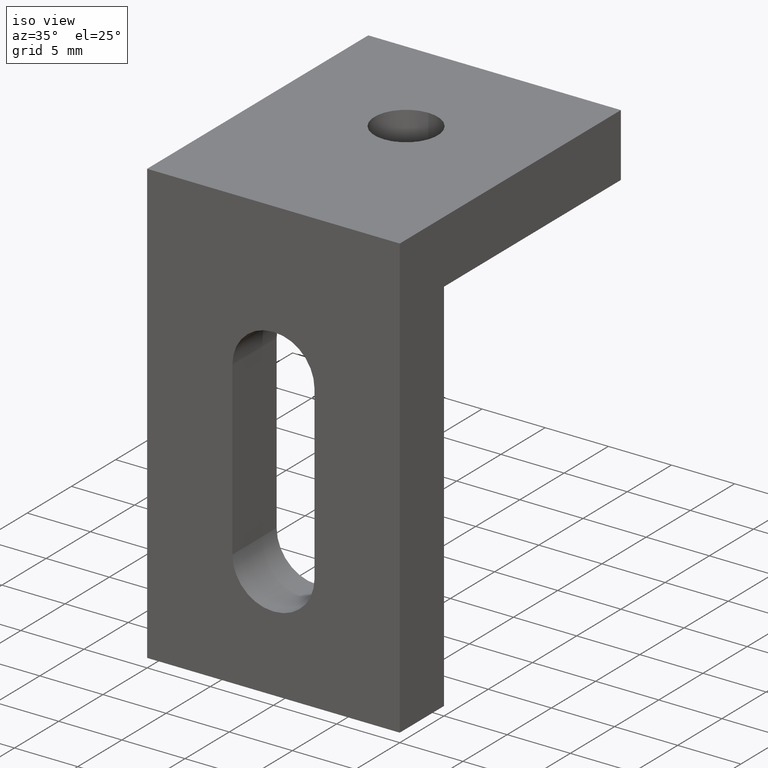
[diagram: clean part render]
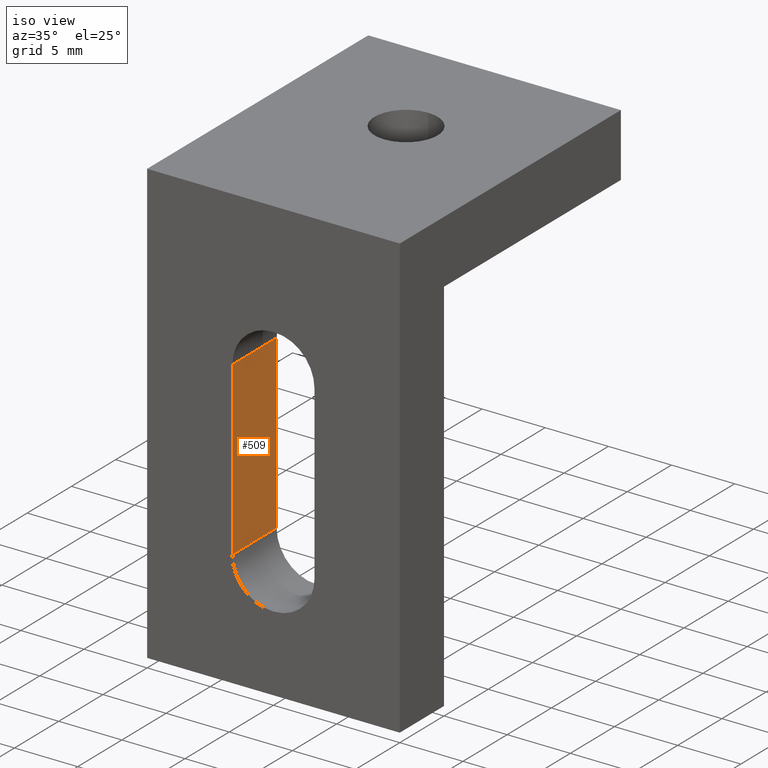
[diagram: same view with one face highlighted and labeled with its STEP entity id]
A machine part, iso view. The second image highlights one B-rep face of the part: STEP entity #509.
In plain terms, the highlighted planar face has unit normal (-1, -0, 0).
Its self-contained STEP definition (entity closure, byte-faithful):
#10 = CARTESIAN_POINT ( 'NONE',  ( 6.750000000000008000, 4.999999999999999100, -25.80000000000000400 ) ) ;
#21 = VERTEX_POINT ( 'NONE', #58 ) ;
#39 = CARTESIAN_POINT ( 'NONE',  ( 6.750000000000008000, -3.781697177629438700E-015, -12.20000000000001000 ) ) ;
#45 = VERTEX_POINT ( 'NONE', #39 ) ;
#51 = CARTESIAN_POINT ( 'NONE',  ( 6.750000000000008000, 4.999999999999997300, -12.20000000000001000 ) ) ;
#55 = VERTEX_POINT ( 'NONE', #10 ) ;
#58 = CARTESIAN_POINT ( 'NONE',  ( 6.750000000000008000, -1.422473250300982200E-015, -25.80000000000000400 ) ) ;
#81 = VERTEX_POINT ( 'NONE', #51 ) ;
#92 = DIRECTION ( 'NONE',  ( 0.0000000000000000000, 0.0000000000000000000, 1.000000000000000000 ) ) ;
#96 = PLANE ( 'NONE',  #441 ) ;
#115 = DIRECTION ( 'NONE',  ( -1.000000000000000000, -0.0000000000000000000, 0.0000000000000000000 ) ) ;
#132 = CARTESIAN_POINT ( 'NONE',  ( 6.750000000000008000, -8.673617379884035500E-016, -29.00000000000000400 ) ) ;
#140 = CARTESIAN_POINT ( 'NONE',  ( 6.750000000000008000, -8.673617379884035500E-016, -29.00000000000000400 ) ) ;
#163 = DIRECTION ( 'NONE',  ( 0.0000000000000000000, -1.734723475976807300E-016, 1.000000000000000000 ) ) ;
#175 = FACE_OUTER_BOUND ( 'NONE', #300, .T. ) ;
#211 = VECTOR ( 'NONE', #548, 1000.000000000000000 ) ;
#244 = LINE ( 'NONE', #140, #379 ) ;
#259 = LINE ( 'NONE', #529, #294 ) ;
#264 = LINE ( 'NONE', #539, #371 ) ;
#274 = ORIENTED_EDGE ( 'NONE', *, *, #642, .T. ) ;
#294 = VECTOR ( 'NONE', #536, 1000.000000000000000 ) ;
#300 = EDGE_LOOP ( 'NONE', ( #274, #314, #346, #340 ) ) ;
#301 = LINE ( 'NONE', #525, #211 ) ;
#314 = ORIENTED_EDGE ( 'NONE', *, *, #637, .T. ) ;
#340 = ORIENTED_EDGE ( 'NONE', *, *, #635, .T. ) ;
#346 = ORIENTED_EDGE ( 'NONE', *, *, #556, .F. ) ;
#371 = VECTOR ( 'NONE', #542, 1000.000000000000000 ) ;
#379 = VECTOR ( 'NONE', #163, 1000.000000000000000 ) ;
#441 = AXIS2_PLACEMENT_3D ( 'NONE', #132, #115, #92 ) ;
#509 = ADVANCED_FACE ( 'NONE', ( #175 ), #96, .F. ) ;
#525 = CARTESIAN_POINT ( 'NONE',  ( 6.750000000000008000, 5.000000000000000000, -29.00000000000000400 ) ) ;
#529 = CARTESIAN_POINT ( 'NONE',  ( 6.750000000000008000, -3.808131059168133200E-015, -12.20000000000000800 ) ) ;
#536 = DIRECTION ( 'NONE',  ( -0.0000000000000000000, -1.000000000000000000, -1.652117596168388200E-016 ) ) ;
#539 = CARTESIAN_POINT ( 'NONE',  ( 6.750000000000008000, 4.999999999999999100, -25.80000000000000400 ) ) ;
#542 = DIRECTION ( 'NONE',  ( 0.0000000000000000000, 1.000000000000000000, 1.652117596168388200E-016 ) ) ;
#548 = DIRECTION ( 'NONE',  ( 0.0000000000000000000, -1.734723475976807300E-016, 1.000000000000000000 ) ) ;
#556 = EDGE_CURVE ( 'NONE', #21, #45, #244, .T. ) ;
#635 = EDGE_CURVE ( 'NONE', #21, #55, #264, .T. ) ;
#637 = EDGE_CURVE ( 'NONE', #81, #45, #259, .T. ) ;
#642 = EDGE_CURVE ( 'NONE', #55, #81, #301, .T. ) ;